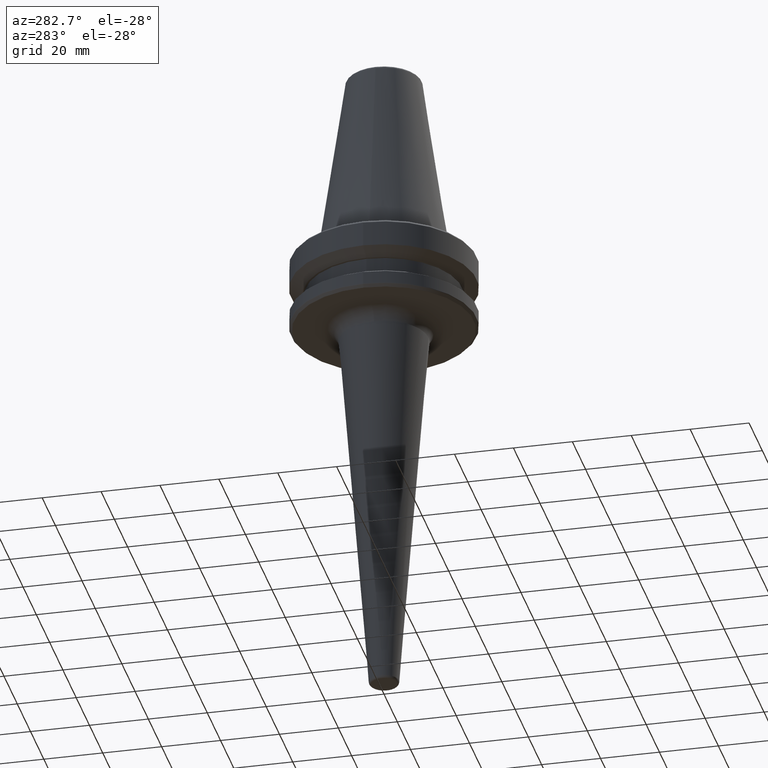
[diagram: clean part render]
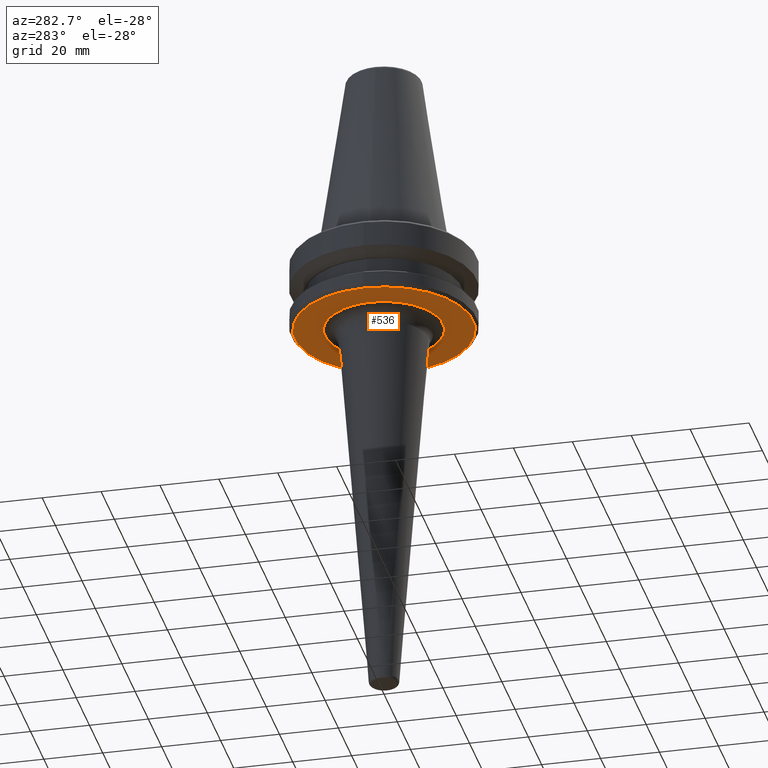
[diagram: same view with one face highlighted and labeled with its STEP entity id]
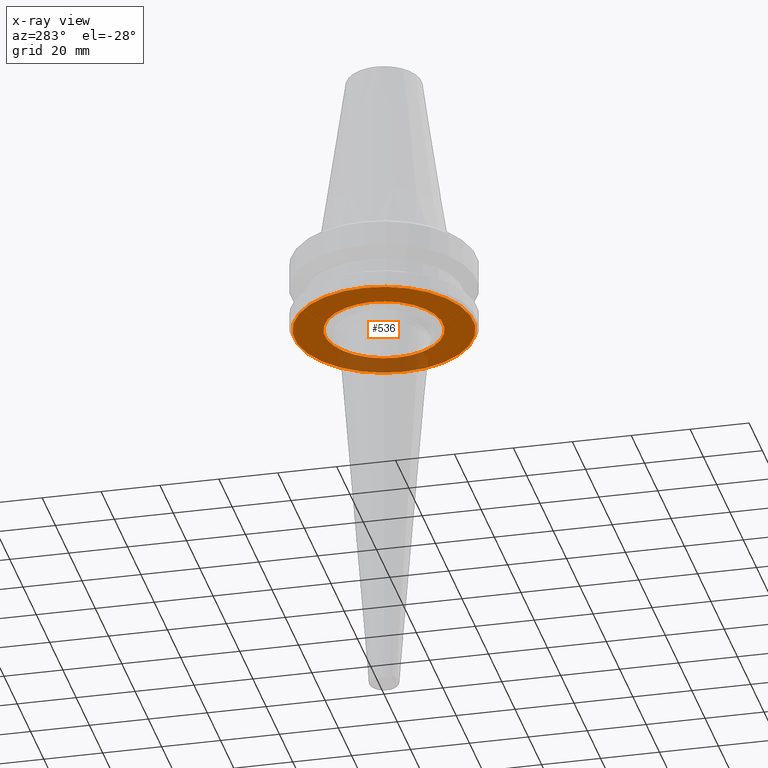
[diagram: x-ray of the same camera — body ghosted, the highlighted face saturated]
A machine part, auxiliary view. The second image highlights one B-rep face of the part: STEP entity #536.
The next image is the same camera in x-ray: the body ghosted, the highlighted face saturated — about 19% of this face is hidden behind the body in this view.
In plain terms, the highlighted planar face has unit normal (0, 0, -1).
Its self-contained STEP definition (entity closure, byte-faithful):
#15 = VERTEX_POINT ( 'NONE', #846 ) ;
#26 = EDGE_LOOP ( 'NONE', ( #1163, #571 ) ) ;
#65 = CARTESIAN_POINT ( 'NONE',  ( -20.08927946596435600, 4.879094302861149800E-015, -27.00000000000000400 ) ) ;
#91 = AXIS2_PLACEMENT_3D ( 'NONE', #1202, #250, #1118 ) ;
#136 = DIRECTION ( 'NONE',  ( -0.0000000000000000000, -0.0000000000000000000, 1.000000000000000000 ) ) ;
#168 = DIRECTION ( 'NONE',  ( -0.0000000000000000000, -0.0000000000000000000, 1.000000000000000000 ) ) ;
#194 = ORIENTED_EDGE ( 'NONE', *, *, #326, .T. ) ;
#215 = DIRECTION ( 'NONE',  ( -1.000000000000000000, 0.0000000000000000000, -0.0000000000000000000 ) ) ;
#226 = DIRECTION ( 'NONE',  ( -0.0000000000000000000, -0.0000000000000000000, 1.000000000000000000 ) ) ;
#250 = DIRECTION ( 'NONE',  ( -0.0000000000000000000, -0.0000000000000000000, 1.000000000000000000 ) ) ;
#305 = ORIENTED_EDGE ( 'NONE', *, *, #817, .T. ) ;
#317 = FACE_BOUND ( 'NONE', #532, .T. ) ;
#326 = EDGE_CURVE ( 'NONE', #741, #587, #528, .T. ) ;
#415 = AXIS2_PLACEMENT_3D ( 'NONE', #1157, #776, #215 ) ;
#487 = AXIS2_PLACEMENT_3D ( 'NONE', #699, #136, #791 ) ;
#528 = CIRCLE ( 'NONE', #1140, 20.08927946596435300 ) ;
#532 = EDGE_LOOP ( 'NONE', ( #194, #305 ) ) ;
#536 = ADVANCED_FACE ( 'NONE', ( #317, #1046 ), #972, .T. ) ;
#567 = CIRCLE ( 'NONE', #759, 20.08927946596435300 ) ;
#571 = ORIENTED_EDGE ( 'NONE', *, *, #1136, .F. ) ;
#587 = VERTEX_POINT ( 'NONE', #602 ) ;
#602 = CARTESIAN_POINT ( 'NONE',  ( 20.08927946596434900, 7.339321482378138800E-015, -27.00000000000000400 ) ) ;
#674 = VERTEX_POINT ( 'NONE', #1150 ) ;
#699 = CARTESIAN_POINT ( 'NONE',  ( 0.0000000000000000000, 0.0000000000000000000, -26.99999999999999600 ) ) ;
#732 = CARTESIAN_POINT ( 'NONE',  ( -4.753169694930506000E-015, 4.879094302861149800E-015, -27.00000000000000400 ) ) ;
#741 = VERTEX_POINT ( 'NONE', #65 ) ;
#759 = AXIS2_PLACEMENT_3D ( 'NONE', #785, #226, #882 ) ;
#776 = DIRECTION ( 'NONE',  ( 0.0000000000000000000, 0.0000000000000000000, -1.000000000000000000 ) ) ;
#785 = CARTESIAN_POINT ( 'NONE',  ( -4.753169694930506000E-015, 4.879094302861149800E-015, -27.00000000000000400 ) ) ;
#791 = DIRECTION ( 'NONE',  ( 1.000000000000000000, 0.0000000000000000000, 0.0000000000000000000 ) ) ;
#817 = EDGE_CURVE ( 'NONE', #587, #741, #567, .T. ) ;
#831 = DIRECTION ( 'NONE',  ( -1.000000000000000000, 0.0000000000000000000, 0.0000000000000000000 ) ) ;
#846 = CARTESIAN_POINT ( 'NONE',  ( -30.33431457505076200, 3.732201245991191800E-015, -26.99999999999999600 ) ) ;
#882 = DIRECTION ( 'NONE',  ( -1.000000000000000000, 0.0000000000000000000, 0.0000000000000000000 ) ) ;
#972 = PLANE ( 'NONE',  #415 ) ;
#984 = EDGE_CURVE ( 'NONE', #674, #15, #1002, .T. ) ;
#995 = CIRCLE ( 'NONE', #91, 30.33431457505076200 ) ;
#1002 = CIRCLE ( 'NONE', #487, 30.33431457505076200 ) ;
#1046 = FACE_OUTER_BOUND ( 'NONE', #26, .T. ) ;
#1118 = DIRECTION ( 'NONE',  ( 1.000000000000000000, 0.0000000000000000000, 0.0000000000000000000 ) ) ;
#1136 = EDGE_CURVE ( 'NONE', #15, #674, #995, .T. ) ;
#1140 = AXIS2_PLACEMENT_3D ( 'NONE', #732, #168, #831 ) ;
#1150 = CARTESIAN_POINT ( 'NONE',  ( 30.33431457505076200, 0.0000000000000000000, -26.99999999999999600 ) ) ;
#1157 = CARTESIAN_POINT ( 'NONE',  ( 0.0000000000000000000, 3.088089149698245900E-015, -27.00000000000000400 ) ) ;
#1163 = ORIENTED_EDGE ( 'NONE', *, *, #984, .F. ) ;
#1202 = CARTESIAN_POINT ( 'NONE',  ( 0.0000000000000000000, 0.0000000000000000000, -26.99999999999999600 ) ) ;